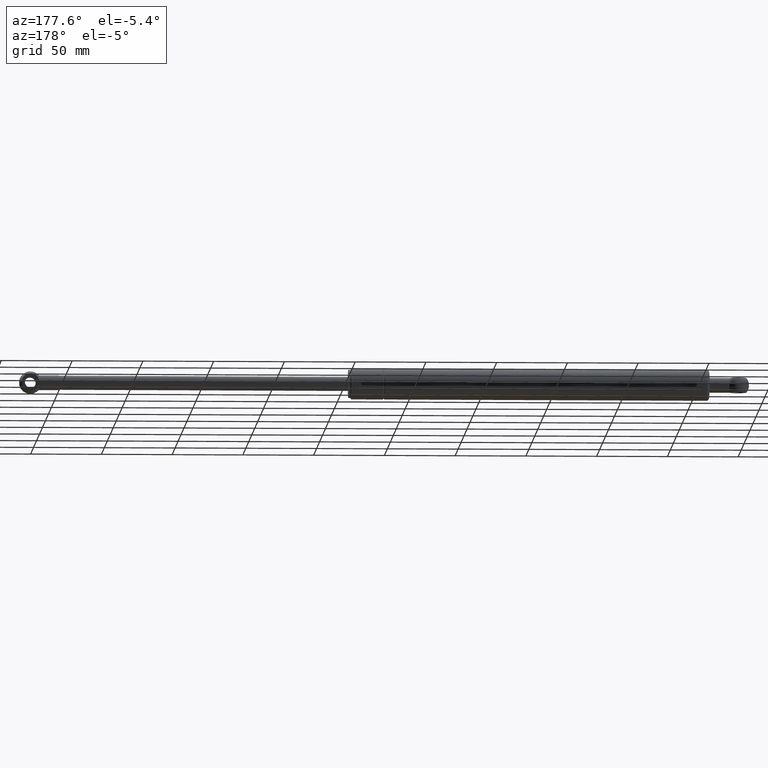
[diagram: clean part render]
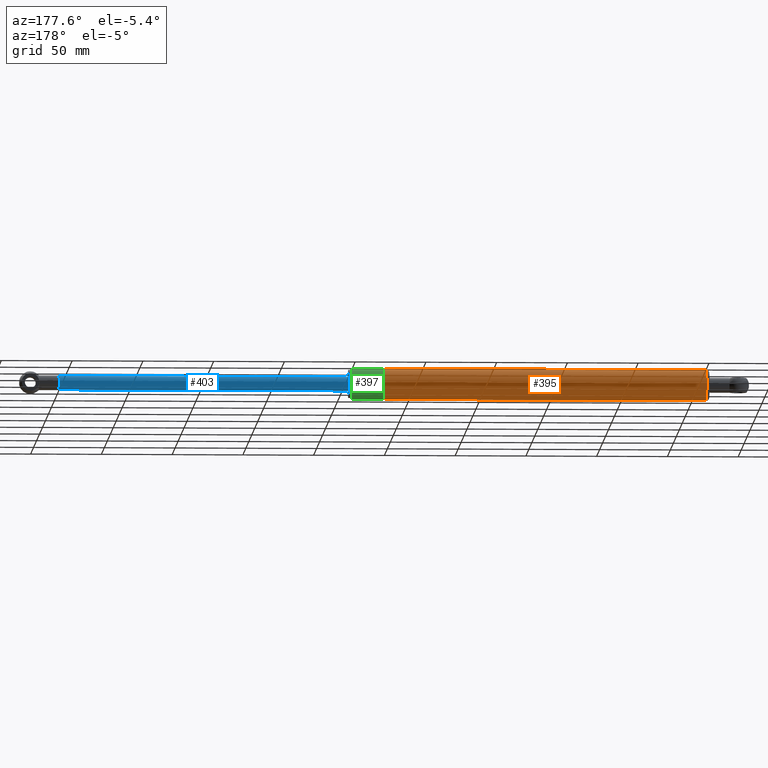
[diagram: same view with three faces highlighted in distinct colors, each labeled with its STEP entity id]
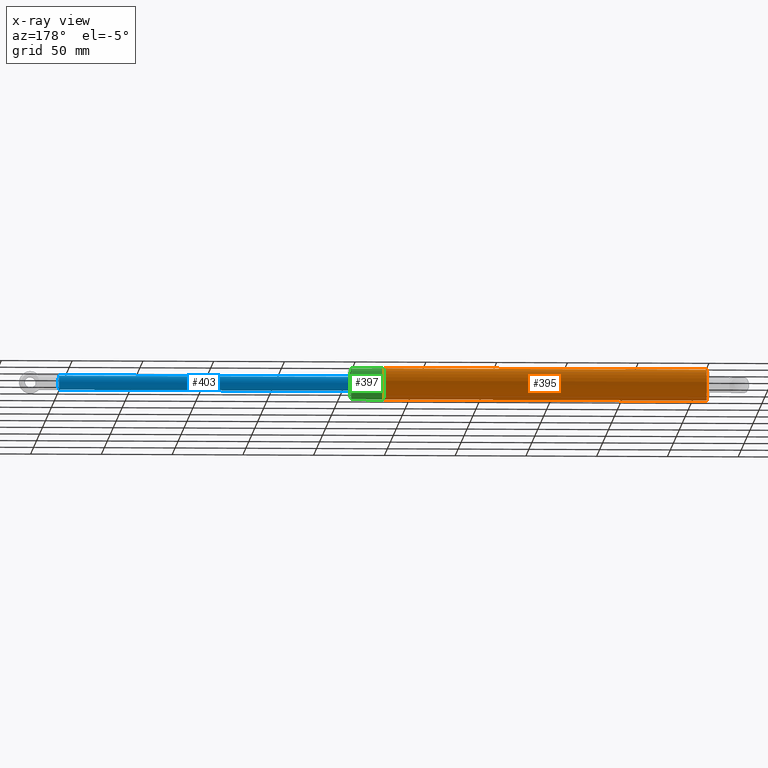
[diagram: x-ray of the same camera — body ghosted, the three highlighted faces saturated]
A machine part, auxiliary view with three faces highlighted in distinct colors.
The next image is the same camera in x-ray (body ghosted, the three faces saturated) — at least one of them is partly hidden behind the body in this view.
Their STEP definitions:

[orange] entity #395 — the highlighted cylindrical surface (bore or boss wall) has radius 11 mm, axis along (1, 0, 0).
#60=CYLINDRICAL_SURFACE('',#446,11.);
#92=FACE_BOUND('',#163,.T.);
#122=FACE_OUTER_BOUND('',#162,.T.);
#162=EDGE_LOOP('',(#326));
#163=EDGE_LOOP('',(#327));
#213=CIRCLE('',#436,11.);
#219=CIRCLE('',#445,11.);
#247=VERTEX_POINT('',#676);
#253=VERTEX_POINT('',#691);
#279=EDGE_CURVE('',#247,#247,#213,.T.);
#285=EDGE_CURVE('',#253,#253,#219,.T.);
#326=ORIENTED_EDGE('',*,*,#279,.F.);
#327=ORIENTED_EDGE('',*,*,#285,.F.);
#395=ADVANCED_FACE('',(#122,#92),#60,.T.);
#436=AXIS2_PLACEMENT_3D('',#677,#524,#525);
#445=AXIS2_PLACEMENT_3D('',#692,#542,#543);
#446=AXIS2_PLACEMENT_3D('',#693,#544,#545);
#524=DIRECTION('center_axis',(-1.,0.,0.));
#525=DIRECTION('ref_axis',(0.,0.,1.));
#542=DIRECTION('center_axis',(1.,0.,0.));
#543=DIRECTION('ref_axis',(0.,1.22464679914735E-16,-1.));
#544=DIRECTION('center_axis',(-1.,0.,0.));
#545=DIRECTION('ref_axis',(0.,0.,1.));
#676=CARTESIAN_POINT('',(25.5,0.,11.));
#677=CARTESIAN_POINT('Origin',(25.5,0.,0.));
#691=CARTESIAN_POINT('',(252.998039208148,-2.69422295812418E-15,11.));
#692=CARTESIAN_POINT('Origin',(252.998039208148,0.,0.));
#693=CARTESIAN_POINT('Origin',(140.249019604074,0.,0.));

[blue] entity #403 — the highlighted cylindrical surface (bore or boss wall) has radius 5 mm, axis along (1, -0, 0).
#64=CYLINDRICAL_SURFACE('',#460,5.00000000000002);
#98=FACE_BOUND('',#177,.T.);
#130=FACE_OUTER_BOUND('',#176,.T.);
#176=EDGE_LOOP('',(#340));
#177=EDGE_LOOP('',(#341));
#224=CIRCLE('',#459,5.);
#225=CIRCLE('',#461,5.00000000000003);
#258=VERTEX_POINT('',#710);
#259=VERTEX_POINT('',#713);
#290=EDGE_CURVE('',#258,#258,#224,.T.);
#291=EDGE_CURVE('',#259,#259,#225,.T.);
#340=ORIENTED_EDGE('',*,*,#291,.F.);
#341=ORIENTED_EDGE('',*,*,#290,.T.);
#403=ADVANCED_FACE('',(#130,#98),#64,.T.);
#459=AXIS2_PLACEMENT_3D('',#711,#570,#571);
#460=AXIS2_PLACEMENT_3D('',#712,#572,#573);
#461=AXIS2_PLACEMENT_3D('',#714,#574,#575);
#570=DIRECTION('center_axis',(-1.,0.,0.));
#571=DIRECTION('ref_axis',(0.,0.,1.));
#572=DIRECTION('center_axis',(-1.,0.,0.));
#573=DIRECTION('ref_axis',(0.,0.,1.));
#574=DIRECTION('center_axis',(-1.,0.,0.));
#575=DIRECTION('ref_axis',(0.,0.,1.));
#710=CARTESIAN_POINT('',(204.5,0.,5.));
#711=CARTESIAN_POINT('Origin',(204.5,0.,0.));
#712=CARTESIAN_POINT('Origin',(102.25,0.,0.));
#713=CARTESIAN_POINT('',(7.1959436245814E-32,0.,5.00000000000003));
#714=CARTESIAN_POINT('Origin',(0.,0.,0.));

[green] entity #397 — the highlighted cylindrical surface (bore or boss wall) has radius 11 mm, axis along (1, 0, 0).
#62=CYLINDRICAL_SURFACE('',#449,11.);
#94=FACE_BOUND('',#167,.T.);
#124=FACE_OUTER_BOUND('',#166,.T.);
#166=EDGE_LOOP('',(#330));
#167=EDGE_LOOP('',(#331));
#214=CIRCLE('',#437,11.);
#215=CIRCLE('',#439,11.);
#248=VERTEX_POINT('',#678);
#249=VERTEX_POINT('',#681);
#280=EDGE_CURVE('',#248,#248,#214,.T.);
#281=EDGE_CURVE('',#249,#249,#215,.T.);
#330=ORIENTED_EDGE('',*,*,#281,.F.);
#331=ORIENTED_EDGE('',*,*,#280,.T.);
#397=ADVANCED_FACE('',(#124,#94),#62,.T.);
#437=AXIS2_PLACEMENT_3D('',#679,#526,#527);
#439=AXIS2_PLACEMENT_3D('',#682,#530,#531);
#449=AXIS2_PLACEMENT_3D('',#697,#550,#551);
#526=DIRECTION('center_axis',(-1.,0.,0.));
#527=DIRECTION('ref_axis',(0.,0.,1.));
#530=DIRECTION('center_axis',(-1.,0.,0.));
#531=DIRECTION('ref_axis',(0.,0.,1.));
#550=DIRECTION('center_axis',(-1.,0.,0.));
#551=DIRECTION('ref_axis',(0.,0.,1.));
#678=CARTESIAN_POINT('',(24.5,0.,11.));
#679=CARTESIAN_POINT('Origin',(24.5,0.,0.));
#681=CARTESIAN_POINT('',(2.,0.,11.));
#682=CARTESIAN_POINT('Origin',(2.,0.,0.));
#697=CARTESIAN_POINT('Origin',(13.25,0.,0.));